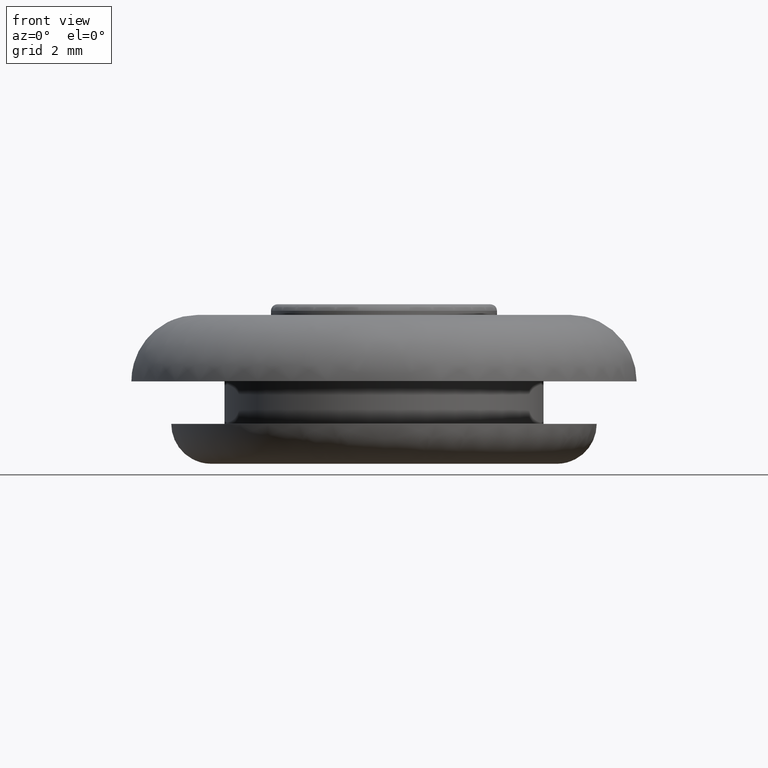
[diagram: clean part render]
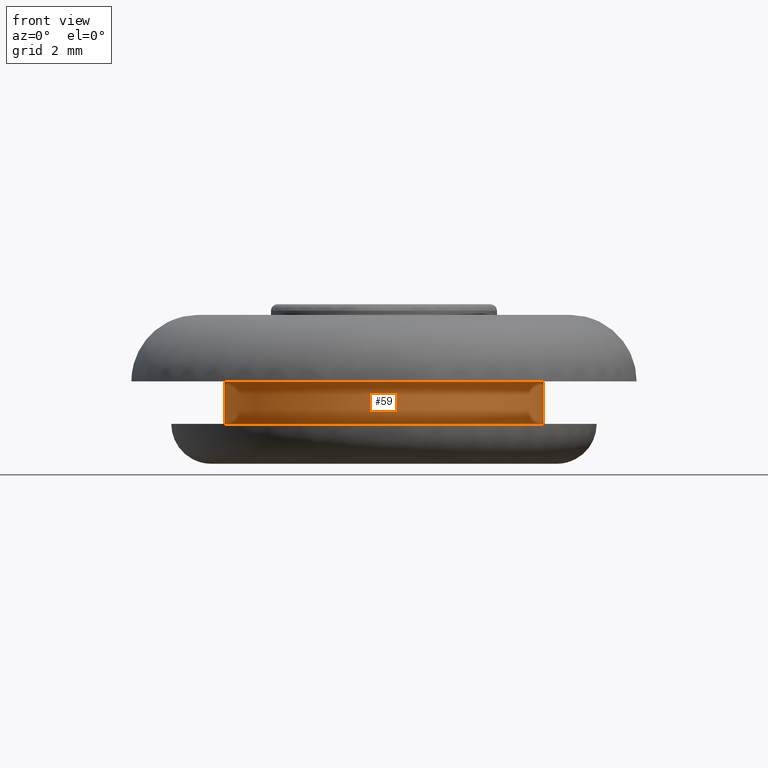
[diagram: same view with one face highlighted and labeled with its STEP entity id]
A machine part, front view. The second image highlights one B-rep face of the part: STEP entity #59.
In plain terms, the highlighted cylindrical surface (partial cylindrical patch) has radius 6 mm, axis along (-0, 0, -1).
Its self-contained STEP definition (entity closure, byte-faithful):
#59=ADVANCED_FACE('',(#259),#258,.T.);
#258=CYLINDRICAL_SURFACE('',#527,6.00000000000E+000);
#259=FACE_OUTER_BOUND('',#528,.T.);
#524=CARTESIAN_POINT('',(0.00000000000E+000,0.00000000000E+000,-2.80000007153E+000));
#525=DIRECTION('',(-0.00000000000E+000,0.00000000000E+000,-1.00000000000E+000));
#526=DIRECTION('',(1.00000000000E+000,1.22464679915E-016,0.00000000000E+000));
#527=AXIS2_PLACEMENT_3D('',#524,#525,#526);
#528=EDGE_LOOP('',(#658,#659,#660,#661));
#658=ORIENTED_EDGE('',*,*,#688,.F.);
#659=ORIENTED_EDGE('',*,*,#714,.F.);
#660=ORIENTED_EDGE('',*,*,#692,.T.);
#661=ORIENTED_EDGE('',*,*,#715,.T.);
#688=EDGE_CURVE('',#816,#817,#818,.T.);
#692=EDGE_CURVE('',#844,#845,#846,.T.);
#714=EDGE_CURVE('',#844,#816,#986,.T.);
#715=EDGE_CURVE('',#845,#817,#992,.T.);
#816=VERTEX_POINT('',#1080);
#817=VERTEX_POINT('',#1081);
#818=CIRCLE('',#1085,6.00000000000E+000);
#844=VERTEX_POINT('',#1100);
#845=VERTEX_POINT('',#1101);
#846=CIRCLE('',#1105,6.00000000000E+000);
#986=(BOUNDED_CURVE() B_SPLINE_CURVE(1,(#1183,#1184),.UNSPECIFIED.,.F.,.F.) B_SPLINE_CURVE_WITH_KNOTS((2,2),(8.33333134656E-002,9.16666653270E-001),.UNSPECIFIED.) CURVE() GEOMETRIC_REPRESENTATION_ITEM() RATIONAL_B_SPLINE_CURVE((1.00000000000E+000,1.00000000000E+000)) REPRESENTATION_ITEM('') );
#992=(BOUNDED_CURVE() B_SPLINE_CURVE(1,(#1185,#1186),.UNSPECIFIED.,.F.,.F.) B_SPLINE_CURVE_WITH_KNOTS((2,2),(8.33333333333E-002,9.16666666667E-001),.UNSPECIFIED.) CURVE() GEOMETRIC_REPRESENTATION_ITEM() RATIONAL_B_SPLINE_CURVE((7.50000000000E-001,7.50000000000E-001)) REPRESENTATION_ITEM('') );
#1080=CARTESIAN_POINT('',(6.00000000000E+000,7.34763812293E-016,-3.60000000000E+000));
#1081=CARTESIAN_POINT('',(-6.00000000000E+000,5.92118946467E-016,-3.60000000000E+000));
#1082=CARTESIAN_POINT('',(0.00000000000E+000,0.00000000000E+000,-3.60000000000E+000));
#1083=DIRECTION('',(0.00000000000E+000,0.00000000000E+000,-1.00000000000E+000));
#1084=DIRECTION('',(1.00000000000E+000,-0.00000000000E+000,-0.00000000000E+000));
#1085=AXIS2_PLACEMENT_3D('',#1082,#1083,#1084);
#1100=CARTESIAN_POINT('',(6.00000000000E+000,-8.88178419700E-016,-2.00000000000E+000));
#1101=CARTESIAN_POINT('',(-6.00000000000E+000,-4.38704339060E-016,-2.00000000000E+000));
#1102=CARTESIAN_POINT('',(0.00000000000E+000,0.00000000000E+000,-2.00000000000E+000));
#1103=DIRECTION('',(0.00000000000E+000,0.00000000000E+000,-1.00000000000E+000));
#1104=DIRECTION('',(-1.00000000000E+000,4.93432455388E-017,-0.00000000000E+000));
#1105=AXIS2_PLACEMENT_3D('',#1102,#1103,#1104);
#1183=CARTESIAN_POINT('',(6.00000000000E+000,7.34788079488E-016,-1.99999996185E+000));
#1184=CARTESIAN_POINT('',(6.00000000000E+000,7.34788079488E-016,-3.59999997428E+000));
#1185=CARTESIAN_POINT('',(-6.00000000000E+000,0.00000000000E+000,-2.00000000000E+000));
#1186=CARTESIAN_POINT('',(-6.00000000000E+000,0.00000000000E+000,-3.60000000000E+000));